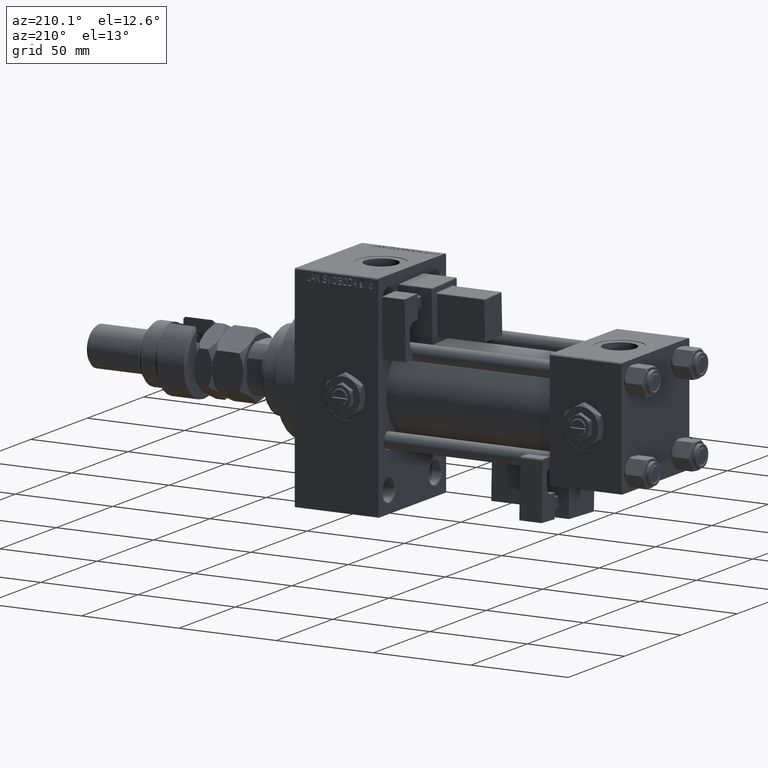
[diagram: clean part render]
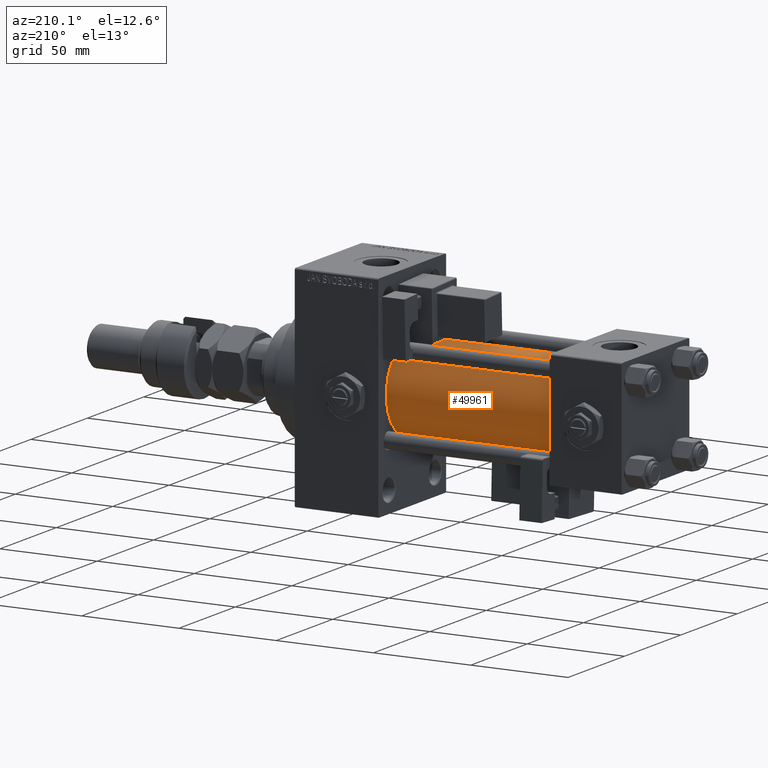
[diagram: same view with one face highlighted and labeled with its STEP entity id]
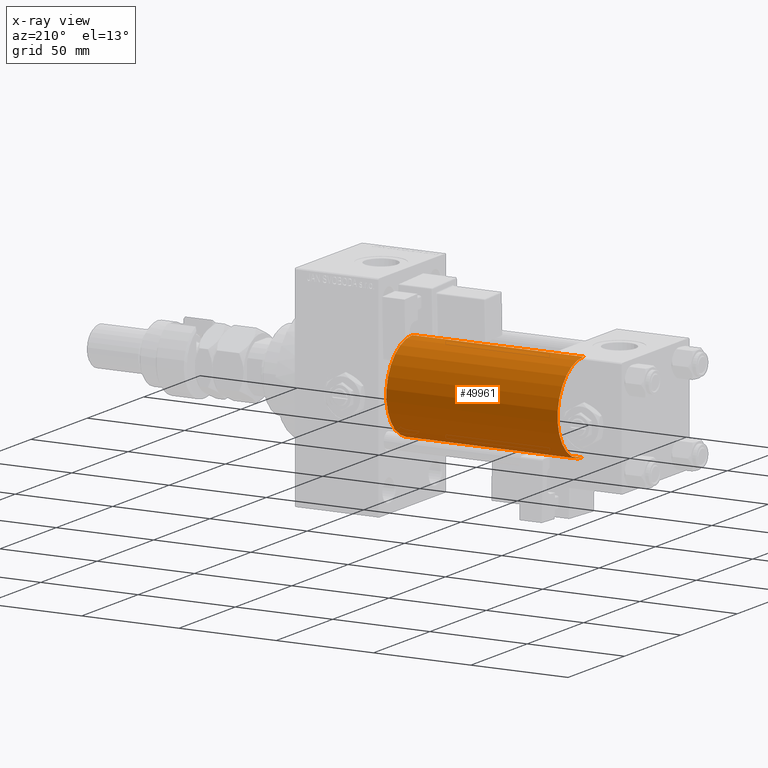
[diagram: x-ray of the same camera — body ghosted, the highlighted face saturated]
A machine part, auxiliary view. The second image highlights one B-rep face of the part: STEP entity #49961.
The next image is the same camera in x-ray: the body ghosted, the highlighted face saturated — about 0% of this face is hidden behind the body in this view.
In plain terms, the highlighted cylindrical surface (partial cylindrical patch) has radius 23 mm, axis along (-1, -0, -0).
Its self-contained STEP definition (entity closure, byte-faithful):
#1996 = CARTESIAN_POINT ( 'NONE',  ( 125.0000000000000000, -2.602085213965210642E-15, 0.000000000000000000 ) ) ;
#2162 = EDGE_CURVE ( 'NONE', #26884, #31501, #21636, .T. ) ;
#3539 = EDGE_CURVE ( 'NONE', #43596, #4726, #28596, .T. ) ;
#3967 = AXIS2_PLACEMENT_3D ( 'NONE', #44684, #54101, #28386 ) ;
#4450 = ORIENTED_EDGE ( 'NONE', *, *, #53369, .T. ) ;
#4726 = VERTEX_POINT ( 'NONE', #23588 ) ;
#8706 = VECTOR ( 'NONE', #17214, 1000.000000000000000 ) ;
#10554 = CIRCLE ( 'NONE', #33485, 23.00000000000000000 ) ;
#12885 = AXIS2_PLACEMENT_3D ( 'NONE', #13331, #35420, #21889 ) ;
#13331 = CARTESIAN_POINT ( 'NONE',  ( 37.00000000000000711, -2.602085213965210642E-15, 0.000000000000000000 ) ) ;
#15589 = CIRCLE ( 'NONE', #12885, 23.00000000000000000 ) ;
#16690 = ORIENTED_EDGE ( 'NONE', *, *, #3539, .T. ) ;
#17214 = DIRECTION ( 'NONE',  ( -1.000000000000000000, -0.000000000000000000, -0.000000000000000000 ) ) ;
#18835 = DIRECTION ( 'NONE',  ( 1.000000000000000000, 0.000000000000000000, 0.000000000000000000 ) ) ;
#21636 = LINE ( 'NONE', #38213, #8706 ) ;
#21889 = DIRECTION ( 'NONE',  ( 0.000000000000000000, 0.000000000000000000, 1.000000000000000000 ) ) ;
#23182 = EDGE_LOOP ( 'NONE', ( #50878, #16690, #4450, #28660 ) ) ;
#23588 = CARTESIAN_POINT ( 'NONE',  ( 37.00000000000000711, 2.146024240737016609E-16, -23.00000000000000000 ) ) ;
#26884 = VERTEX_POINT ( 'NONE', #40916 ) ;
#28328 = CARTESIAN_POINT ( 'NONE',  ( 125.0000000000000000, 2.146024240737016609E-16, -23.00000000000000000 ) ) ;
#28386 = DIRECTION ( 'NONE',  ( 0.000000000000000000, 0.000000000000000000, 1.000000000000000000 ) ) ;
#28482 = DIRECTION ( 'NONE',  ( 0.000000000000000000, 0.000000000000000000, -1.000000000000000000 ) ) ;
#28596 = LINE ( 'NONE', #28328, #42217 ) ;
#28660 = ORIENTED_EDGE ( 'NONE', *, *, #2162, .F. ) ;
#31501 = VERTEX_POINT ( 'NONE', #50843 ) ;
#33485 = AXIS2_PLACEMENT_3D ( 'NONE', #1996, #18835, #28482 ) ;
#35420 = DIRECTION ( 'NONE',  ( 1.000000000000000000, -0.000000000000000000, 0.000000000000000000 ) ) ;
#36653 = EDGE_CURVE ( 'NONE', #43596, #26884, #10554, .T. ) ;
#36671 = FACE_OUTER_BOUND ( 'NONE', #23182, .T. ) ;
#38213 = CARTESIAN_POINT ( 'NONE',  ( 125.0000000000000000, -2.602085213965210642E-15, 23.00000000000000000 ) ) ;
#40916 = CARTESIAN_POINT ( 'NONE',  ( 125.0000000000000000, -2.602085213965210642E-15, 23.00000000000000000 ) ) ;
#41765 = CARTESIAN_POINT ( 'NONE',  ( 125.0000000000000000, 2.146024240737016609E-16, -23.00000000000000000 ) ) ;
#42217 = VECTOR ( 'NONE', #54304, 1000.000000000000000 ) ;
#43596 = VERTEX_POINT ( 'NONE', #41765 ) ;
#44684 = CARTESIAN_POINT ( 'NONE',  ( 125.0000000000000000, -2.602085213965210642E-15, 0.000000000000000000 ) ) ;
#49961 = ADVANCED_FACE ( 'NONE', ( #36671 ), #53814, .T. ) ;
#50843 = CARTESIAN_POINT ( 'NONE',  ( 37.00000000000000711, -2.602085213965210642E-15, 23.00000000000000000 ) ) ;
#50878 = ORIENTED_EDGE ( 'NONE', *, *, #36653, .F. ) ;
#53369 = EDGE_CURVE ( 'NONE', #4726, #31501, #15589, .T. ) ;
#53814 = CYLINDRICAL_SURFACE ( 'NONE', #3967, 23.00000000000000000 ) ;
#54101 = DIRECTION ( 'NONE',  ( -1.000000000000000000, -0.000000000000000000, -0.000000000000000000 ) ) ;
#54304 = DIRECTION ( 'NONE',  ( -1.000000000000000000, -0.000000000000000000, -0.000000000000000000 ) ) ;